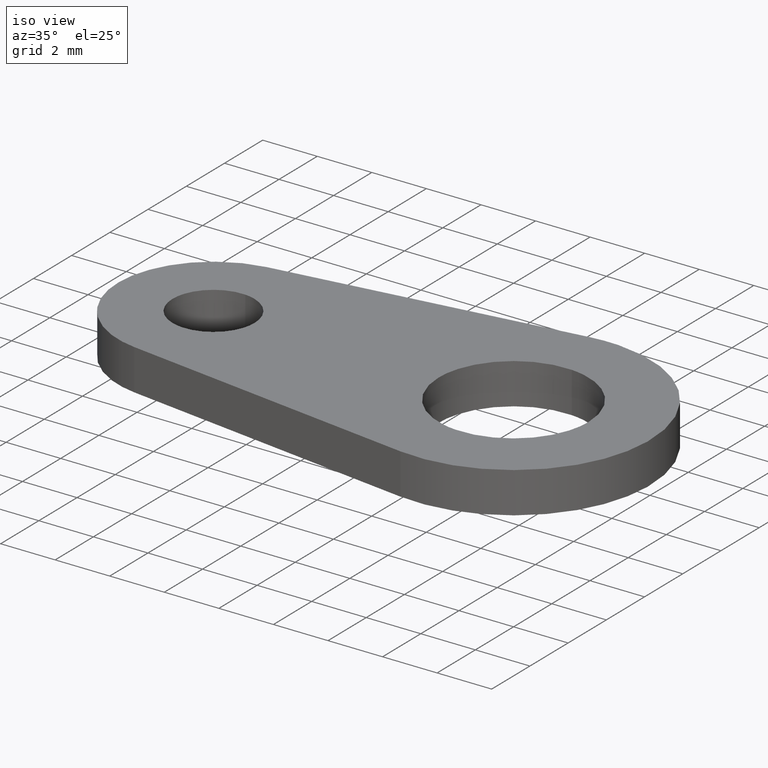
[diagram: clean part render]
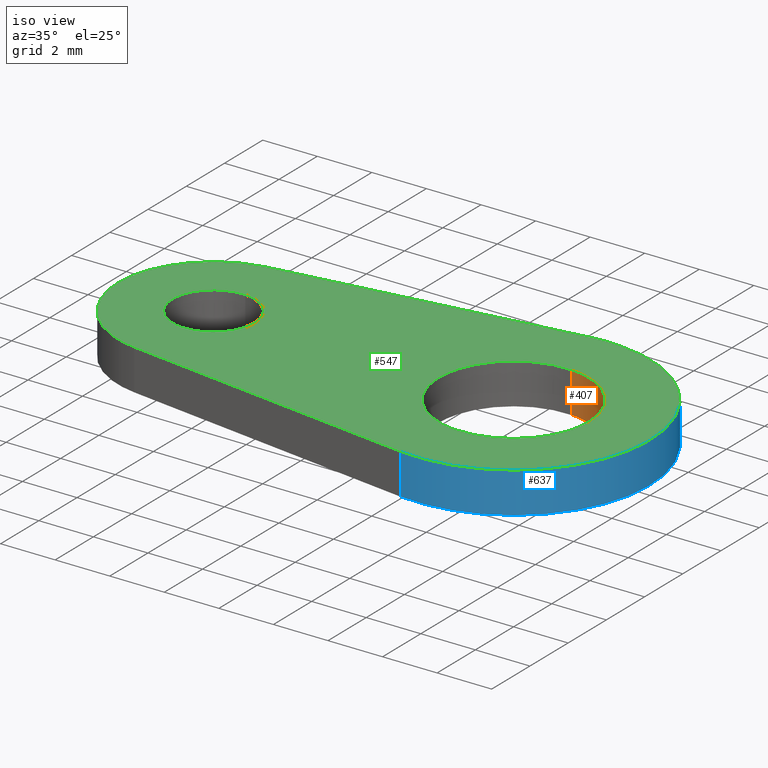
[diagram: same view with three faces highlighted in distinct colors, each labeled with its STEP entity id]
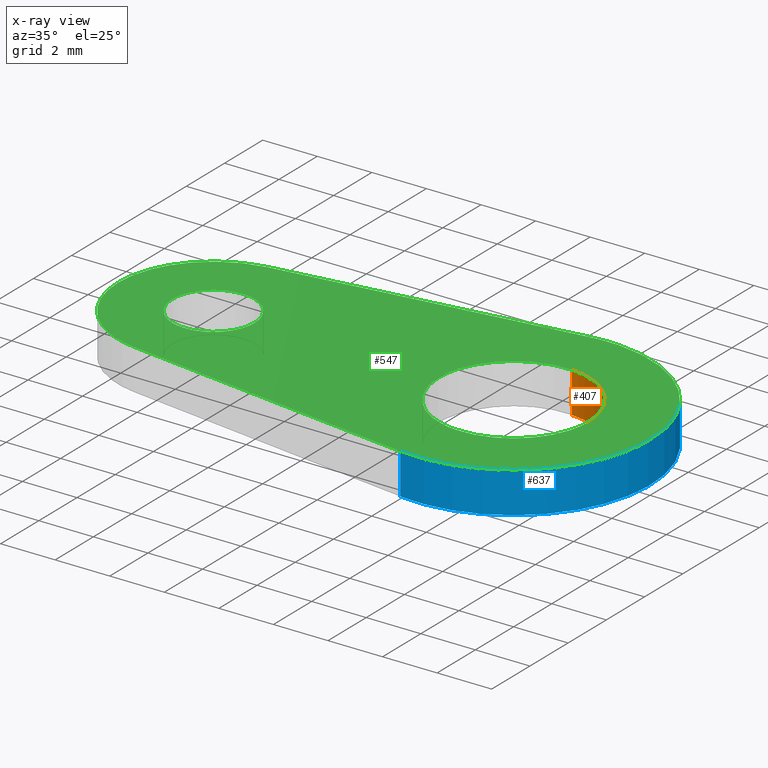
[diagram: x-ray of the same camera — body ghosted, the three highlighted faces saturated]
A machine part, iso view with three faces highlighted in distinct colors.
The next image is the same camera in x-ray (body ghosted, the three faces saturated) — at least one of them is partly hidden behind the body in this view.
Their STEP definitions:

[orange] entity #407 — the highlighted face is a freeform B-spline surface patch.
#246=CARTESIAN_POINT('',(10.784237486729440,-2.741522667764607,8.673617E-017));
#247=VERTEX_POINT('',#246);
#261=CARTESIAN_POINT('',(11.215762513270560,2.741522667764607,-8.673617E-017));
#262=VERTEX_POINT('',#261);
#278=CARTESIAN_POINT('',(11.215762513270560,2.741522667764607,1.500000000000055));
#279=VERTEX_POINT('',#278);
#280=CARTESIAN_POINT('',(11.215762513270560,2.741522667764607,1.500000000000055));
#281=CARTESIAN_POINT('',(11.215762513270560,2.741522667764607,-8.673617E-017));
#282=QUASI_UNIFORM_CURVE('',1,(#280,#281),.UNSPECIFIED.,.F.,.U.);
#283=EDGE_CURVE('',#279,#262,#282,.T.);
#302=CARTESIAN_POINT('',(10.784237486729440,-2.741522667764607,1.500000000000055));
#303=VERTEX_POINT('',#302);
#317=CARTESIAN_POINT('',(10.784237486729440,-2.741522667764607,1.500000000000055));
#318=CARTESIAN_POINT('',(10.784237486729440,-2.741522667764607,8.673617E-017));
#319=QUASI_UNIFORM_CURVE('',1,(#317,#318),.UNSPECIFIED.,.F.,.U.);
#320=EDGE_CURVE('',#303,#247,#319,.T.);
#325=CARTESIAN_POINT('',(11.215762513251580,2.741522667766101,1.537500000000057));
#326=CARTESIAN_POINT('',(13.957285181017678,2.525760154514525,1.537500000000057));
#327=CARTESIAN_POINT('',(13.741522667766100,-0.215762513251575,1.537500000000057));
#328=CARTESIAN_POINT('',(13.525760154514526,-2.957285181017677,1.537500000000057));
#329=CARTESIAN_POINT('',(10.784237486748420,-2.741522667766101,1.537500000000057));
#330=CARTESIAN_POINT('',(11.215762513251580,2.741522667766101,-0.038437500000001));
#331=CARTESIAN_POINT('',(13.957285181017678,2.525760154514525,-0.038437500000001));
#332=CARTESIAN_POINT('',(13.741522667766100,-0.215762513251575,-0.038437500000001));
#333=CARTESIAN_POINT('',(13.525760154514526,-2.957285181017677,-0.038437500000001));
#334=CARTESIAN_POINT('',(10.784237486748420,-2.741522667766101,-0.038437500000001));
#342=(BOUNDED_SURFACE()B_SPLINE_SURFACE(2,1,((#325,#330),(#326,#331),(#327,#332),(#328,#333),(#329,#334)),.UNSPECIFIED.,.F.,.F.,.U.)B_SPLINE_SURFACE_WITH_KNOTS((3,2,3),(2,2),(0.0,4.556349186104049,9.112698372208097),(0.0,1.0),.UNSPECIFIED.)GEOMETRIC_REPRESENTATION_ITEM()RATIONAL_B_SPLINE_SURFACE(((1.0,1.0),(0.707106781186548,0.707106781186548),(1.0,1.0),(0.707106781186548,0.707106781186548),(1.0,1.0)))REPRESENTATION_ITEM('')SURFACE());
#343=CARTESIAN_POINT('',(13.750000000000000,0.0,0.0));
#344=VERTEX_POINT('',#343);
#345=CARTESIAN_POINT('',(10.784237486729442,-2.741522667764607,8.673617E-017));
#346=CARTESIAN_POINT('',(10.891952205709833,-2.750000000000000,0.0));
#347=CARTESIAN_POINT('',(11.0,-2.750000000000000,0.0));
#348=CARTESIAN_POINT('',(13.750000000000000,-2.750000000000000,0.0));
#349=CARTESIAN_POINT('',(13.750000000000000,0.0,0.0));
#357=(BOUNDED_CURVE()B_SPLINE_CURVE(2,(#345,#346,#347,#348,#349),.UNSPECIFIED.,.F.,.U.)B_SPLINE_CURVE_WITH_KNOTS((3,2,3),(0.236331300630392,0.250000000000000,0.500000000000000),.UNSPECIFIED.)CURVE()GEOMETRIC_REPRESENTATION_ITEM()RATIONAL_B_SPLINE_CURVE((0.969723356166860,0.983986122578569,1.0,0.707106781186548,1.0))REPRESENTATION_ITEM(''));
#358=EDGE_CURVE('',#247,#344,#357,.T.);
#359=ORIENTED_EDGE('',*,*,#358,.F.);
#360=ORIENTED_EDGE('',*,*,#320,.F.);
#361=CARTESIAN_POINT('',(13.750000000000000,0.0,1.500000000000055));
#362=VERTEX_POINT('',#361);
#363=CARTESIAN_POINT('',(10.784237486729436,-2.741522667764607,1.500000000000055));
#364=CARTESIAN_POINT('',(10.891952205709835,-2.750000000000000,1.500000000000055));
#365=CARTESIAN_POINT('',(11.0,-2.750000000000000,1.500000000000055));
#366=CARTESIAN_POINT('',(13.750000000000000,-2.750000000000000,1.500000000000055));
#367=CARTESIAN_POINT('',(13.750000000000000,0.0,1.500000000000055));
#375=(BOUNDED_CURVE()B_SPLINE_CURVE(2,(#363,#364,#365,#366,#367),.UNSPECIFIED.,.F.,.U.)B_SPLINE_CURVE_WITH_KNOTS((3,2,3),(0.236331300630392,0.250000000000000,0.500000000000000),.UNSPECIFIED.)CURVE()GEOMETRIC_REPRESENTATION_ITEM()RATIONAL_B_SPLINE_CURVE((0.969723356166860,0.983986122578569,1.0,0.707106781186548,1.0))REPRESENTATION_ITEM(''));
#376=EDGE_CURVE('',#303,#362,#375,.T.);
#377=ORIENTED_EDGE('',*,*,#376,.T.);
#378=CARTESIAN_POINT('',(13.750000000000000,0.0,1.500000000000055));
#379=CARTESIAN_POINT('',(13.749999999999996,2.542073852024749,1.500000000000055));
#380=CARTESIAN_POINT('',(11.215762513270564,2.741522667764607,1.500000000000056));
#388=(BOUNDED_CURVE()B_SPLINE_CURVE(2,(#378,#379,#380),.UNSPECIFIED.,.F.,.U.)B_SPLINE_CURVE_WITH_KNOTS((3,3),(0.500000000000000,0.736331300630392),.UNSPECIFIED.)CURVE()GEOMETRIC_REPRESENTATION_ITEM()RATIONAL_B_SPLINE_CURVE((1.0,0.723120658607979,0.969723356166860))REPRESENTATION_ITEM(''));
#389=EDGE_CURVE('',#362,#279,#388,.T.);
#390=ORIENTED_EDGE('',*,*,#389,.T.);
#391=ORIENTED_EDGE('',*,*,#283,.T.);
#392=CARTESIAN_POINT('',(13.750000000000000,0.0,0.0));
#393=CARTESIAN_POINT('',(13.749999999999996,2.542073852024749,0.0));
#394=CARTESIAN_POINT('',(11.215762513270564,2.741522667764607,-8.673617E-017));
#402=(BOUNDED_CURVE()B_SPLINE_CURVE(2,(#392,#393,#394),.UNSPECIFIED.,.F.,.U.)B_SPLINE_CURVE_WITH_KNOTS((3,3),(0.500000000000000,0.736331300630392),.UNSPECIFIED.)CURVE()GEOMETRIC_REPRESENTATION_ITEM()RATIONAL_B_SPLINE_CURVE((1.0,0.723120658607979,0.969723356166860))REPRESENTATION_ITEM(''));
#403=EDGE_CURVE('',#344,#262,#402,.T.);
#404=ORIENTED_EDGE('',*,*,#403,.F.);
#405=EDGE_LOOP('',(#359,#360,#377,#390,#391,#404));
#406=FACE_OUTER_BOUND('',#405,.T.);
#407=ADVANCED_FACE('',(#406),#342,.F.);

[blue] entity #637 — the highlighted face is a freeform B-spline surface patch.
#413=CARTESIAN_POINT('',(10.318182000000000,-4.953294000000000,0.0));
#414=VERTEX_POINT('',#413);
#415=CARTESIAN_POINT('',(10.318182000000000,4.953294000000000,0.0));
#416=VERTEX_POINT('',#415);
#417=CARTESIAN_POINT('',(10.318182000000000,-4.953294000000000,0.0));
#418=CARTESIAN_POINT('',(13.487467747425296,-5.389544594444422,0.0));
#419=CARTESIAN_POINT('',(15.211674520440029,-2.694772297222210,0.0));
#420=CARTESIAN_POINT('',(16.935881293454763,0.0,0.0));
#421=CARTESIAN_POINT('',(15.211674520440029,2.694772297222210,0.0));
#422=CARTESIAN_POINT('',(13.487467747425296,5.389544594444420,0.0));
#423=CARTESIAN_POINT('',(10.318182000000000,4.953294000000000,0.0));
#431=(BOUNDED_CURVE()B_SPLINE_CURVE(2,(#417,#418,#419,#420,#421,#422,#423),.UNSPECIFIED.,.F.,.U.)B_SPLINE_CURVE_WITH_KNOTS((3,2,2,3),(0.0,0.333333333333333,0.666666666666667,1.0),.UNSPECIFIED.)CURVE()GEOMETRIC_REPRESENTATION_ITEM()RATIONAL_B_SPLINE_CURVE((1.0,0.842334904088005,1.0,0.842334904088005,1.0,0.842334904088005,1.0))REPRESENTATION_ITEM(''));
#432=EDGE_CURVE('',#414,#416,#431,.T.);
#483=CARTESIAN_POINT('',(10.318182000000000,-4.953294000000000,1.500000000000055));
#484=VERTEX_POINT('',#483);
#485=CARTESIAN_POINT('',(10.318182000000000,4.953294000000000,1.500000000000055));
#486=VERTEX_POINT('',#485);
#487=CARTESIAN_POINT('',(10.318182000000000,-4.953294000000000,1.500000000000055));
#488=CARTESIAN_POINT('',(13.487467747425296,-5.389544594444422,1.500000000000055));
#489=CARTESIAN_POINT('',(15.211674520440029,-2.694772297222210,1.500000000000055));
#490=CARTESIAN_POINT('',(16.935881293454763,0.0,1.500000000000055));
#491=CARTESIAN_POINT('',(15.211674520440029,2.694772297222210,1.500000000000055));
#492=CARTESIAN_POINT('',(13.487467747425296,5.389544594444420,1.500000000000055));
#493=CARTESIAN_POINT('',(10.318182000000000,4.953294000000000,1.500000000000055));
#501=(BOUNDED_CURVE()B_SPLINE_CURVE(2,(#487,#488,#489,#490,#491,#492,#493),.UNSPECIFIED.,.F.,.U.)B_SPLINE_CURVE_WITH_KNOTS((3,2,2,3),(0.0,0.333333333333333,0.666666666666667,1.0),.UNSPECIFIED.)CURVE()GEOMETRIC_REPRESENTATION_ITEM()RATIONAL_B_SPLINE_CURVE((1.0,0.842334904088005,1.0,0.842334904088005,1.0,0.842334904088005,1.0))REPRESENTATION_ITEM(''));
#502=EDGE_CURVE('',#484,#486,#501,.T.);
#554=CARTESIAN_POINT('',(10.318182000000000,-4.953294000000000,1.500000000000055));
#555=CARTESIAN_POINT('',(10.318182000000000,-4.953294000000000,0.0));
#556=QUASI_UNIFORM_CURVE('',1,(#554,#555),.UNSPECIFIED.,.F.,.U.);
#557=EDGE_CURVE('',#484,#414,#556,.T.);
#605=CARTESIAN_POINT('',(10.318182000000000,4.953294000000000,1.500000000000055));
#606=CARTESIAN_POINT('',(10.318182000000000,4.953294000000000,0.0));
#607=QUASI_UNIFORM_CURVE('',1,(#605,#606),.UNSPECIFIED.,.F.,.U.);
#608=EDGE_CURVE('',#486,#416,#607,.T.);
#613=CARTESIAN_POINT('',(10.188753476155259,-4.933748988097166,1.537500000000057));
#614=CARTESIAN_POINT('',(10.188753476155259,-4.933748988097166,-0.038437500000001));
#615=CARTESIAN_POINT('',(16.068566557678118,-5.900554947368696,1.537500000000057));
#616=CARTESIAN_POINT('',(16.068566557678118,-5.900554947368696,-0.038437500000001));
#617=CARTESIAN_POINT('',(15.999665735398491,0.057814654562636,1.537500000000057));
#618=CARTESIAN_POINT('',(15.999665735398491,0.057814654562636,-0.038437500000001));
#619=CARTESIAN_POINT('',(15.930764913118889,6.016184256493964,1.537500000000057));
#620=CARTESIAN_POINT('',(15.930764913118889,6.016184256493964,-0.038437500000001));
#621=CARTESIAN_POINT('',(10.074880836053250,4.913670169282677,1.537500000000057));
#622=CARTESIAN_POINT('',(10.074880836053250,4.913670169282677,-0.038437500000001));
#630=(BOUNDED_SURFACE()B_SPLINE_SURFACE(1,2,((#613,#615,#617,#619,#621),(#614,#616,#618,#620,#622)),.UNSPECIFIED.,.F.,.F.,.U.)B_SPLINE_SURFACE_WITH_KNOTS((2,2),(3,2,3),(0.0,1.0),(0.0,9.326153163099969,18.652306326199941),.UNSPECIFIED.)GEOMETRIC_REPRESENTATION_ITEM()RATIONAL_B_SPLINE_SURFACE(((1.0,0.642787609686539,1.0,0.642787609686539,1.0),(1.0,0.642787609686539,1.0,0.642787609686539,1.0)))REPRESENTATION_ITEM('')SURFACE());
#631=ORIENTED_EDGE('',*,*,#432,.T.);
#632=ORIENTED_EDGE('',*,*,#608,.F.);
#633=ORIENTED_EDGE('',*,*,#502,.F.);
#634=ORIENTED_EDGE('',*,*,#557,.T.);
#635=EDGE_LOOP('',(#631,#632,#633,#634));
#636=FACE_OUTER_BOUND('',#635,.T.);
#637=ADVANCED_FACE('',(#636),#630,.T.);

[green] entity #547 — the highlighted face is a freeform B-spline surface patch.
#96=CARTESIAN_POINT('',(0.117688643621650,1.495376000597340,1.500000000000055));
#97=VERTEX_POINT('',#96);
#103=CARTESIAN_POINT('',(-1.500000000000000,0.0,1.500000000000055));
#104=VERTEX_POINT('',#103);
#105=CARTESIAN_POINT('',(0.117688643621650,1.495376000597340,1.500000000000055));
#106=CARTESIAN_POINT('',(0.058935160541526,1.500000000000000,1.500000000000055));
#107=CARTESIAN_POINT('',(0.0,1.500000000000000,1.500000000000055));
#108=CARTESIAN_POINT('',(-1.500000000000000,1.500000000000000,1.500000000000055));
#109=CARTESIAN_POINT('',(-1.500000000000000,0.0,1.500000000000055));
#117=(BOUNDED_CURVE()B_SPLINE_CURVE(2,(#105,#106,#107,#108,#109),.UNSPECIFIED.,.F.,.U.)B_SPLINE_CURVE_WITH_KNOTS((3,2,3),(0.736331300625916,0.750000000000000,1.0),.UNSPECIFIED.)CURVE()GEOMETRIC_REPRESENTATION_ITEM()RATIONAL_B_SPLINE_CURVE((0.969723356157518,0.983986122573324,1.0,0.707106781186548,1.0))REPRESENTATION_ITEM(''));
#118=EDGE_CURVE('',#97,#104,#117,.T.);
#120=CARTESIAN_POINT('',(-0.117688643621651,-1.495376000597340,1.500000000000055));
#121=VERTEX_POINT('',#120);
#122=CARTESIAN_POINT('',(-1.500000000000000,0.0,1.500000000000055));
#123=CARTESIAN_POINT('',(-1.500000000000001,-1.386585737431722,1.500000000000055));
#124=CARTESIAN_POINT('',(-0.117688643621650,-1.495376000597340,1.500000000000054));
#132=(BOUNDED_CURVE()B_SPLINE_CURVE(2,(#122,#123,#124),.UNSPECIFIED.,.F.,.U.)B_SPLINE_CURVE_WITH_KNOTS((3,3),(0.0,0.236331300625916),.UNSPECIFIED.)CURVE()GEOMETRIC_REPRESENTATION_ITEM()RATIONAL_B_SPLINE_CURVE((1.0,0.723120658613224,0.969723356157517))REPRESENTATION_ITEM(''));
#133=EDGE_CURVE('',#104,#121,#132,.T.);
#179=CARTESIAN_POINT('',(1.500000000000000,0.0,1.500000000000055));
#180=VERTEX_POINT('',#179);
#181=CARTESIAN_POINT('',(-0.117688643621650,-1.495376000597340,1.500000000000054));
#182=CARTESIAN_POINT('',(-0.058935160541526,-1.500000000000000,1.500000000000055));
#183=CARTESIAN_POINT('',(0.0,-1.500000000000000,1.500000000000055));
#184=CARTESIAN_POINT('',(1.500000000000000,-1.500000000000000,1.500000000000055));
#185=CARTESIAN_POINT('',(1.500000000000000,0.0,1.500000000000055));
#193=(BOUNDED_CURVE()B_SPLINE_CURVE(2,(#181,#182,#183,#184,#185),.UNSPECIFIED.,.F.,.U.)B_SPLINE_CURVE_WITH_KNOTS((3,2,3),(0.236331300625916,0.250000000000000,0.500000000000000),.UNSPECIFIED.)CURVE()GEOMETRIC_REPRESENTATION_ITEM()RATIONAL_B_SPLINE_CURVE((0.969723356157517,0.983986122573324,1.0,0.707106781186548,1.0))REPRESENTATION_ITEM(''));
#194=EDGE_CURVE('',#121,#180,#193,.T.);
#196=CARTESIAN_POINT('',(1.500000000000000,0.0,1.500000000000055));
#197=CARTESIAN_POINT('',(1.500000000000000,1.386585737431726,1.500000000000054));
#198=CARTESIAN_POINT('',(0.117688643621650,1.495376000597340,1.500000000000055));
#206=(BOUNDED_CURVE()B_SPLINE_CURVE(2,(#196,#197,#198),.UNSPECIFIED.,.F.,.U.)B_SPLINE_CURVE_WITH_KNOTS((3,3),(0.500000000000000,0.736331300625916),.UNSPECIFIED.)CURVE()GEOMETRIC_REPRESENTATION_ITEM()RATIONAL_B_SPLINE_CURVE((1.0,0.723120658613223,0.969723356157518))REPRESENTATION_ITEM(''));
#207=EDGE_CURVE('',#180,#97,#206,.T.);
#278=CARTESIAN_POINT('',(11.215762513270560,2.741522667764607,1.500000000000055));
#279=VERTEX_POINT('',#278);
#285=CARTESIAN_POINT('',(8.250000000000000,0.0,1.500000000000055));
#286=VERTEX_POINT('',#285);
#287=CARTESIAN_POINT('',(11.215762513270564,2.741522667764607,1.500000000000056));
#288=CARTESIAN_POINT('',(11.108047794290171,2.750000000000000,1.500000000000056));
#289=CARTESIAN_POINT('',(11.0,2.750000000000000,1.500000000000055));
#290=CARTESIAN_POINT('',(8.250000000000000,2.750000000000000,1.500000000000055));
#291=CARTESIAN_POINT('',(8.250000000000000,0.0,1.500000000000055));
#299=(BOUNDED_CURVE()B_SPLINE_CURVE(2,(#287,#288,#289,#290,#291),.UNSPECIFIED.,.F.,.U.)B_SPLINE_CURVE_WITH_KNOTS((3,2,3),(0.736331300630392,0.750000000000000,1.0),.UNSPECIFIED.)CURVE()GEOMETRIC_REPRESENTATION_ITEM()RATIONAL_B_SPLINE_CURVE((0.969723356166860,0.983986122578569,1.0,0.707106781186548,1.0))REPRESENTATION_ITEM(''));
#300=EDGE_CURVE('',#279,#286,#299,.T.);
#302=CARTESIAN_POINT('',(10.784237486729440,-2.741522667764607,1.500000000000055));
#303=VERTEX_POINT('',#302);
#304=CARTESIAN_POINT('',(8.250000000000000,0.0,1.500000000000055));
#305=CARTESIAN_POINT('',(8.250000000000000,-2.542073852024749,1.500000000000055));
#306=CARTESIAN_POINT('',(10.784237486729442,-2.741522667764607,1.500000000000056));
#314=(BOUNDED_CURVE()B_SPLINE_CURVE(2,(#304,#305,#306),.UNSPECIFIED.,.F.,.U.)B_SPLINE_CURVE_WITH_KNOTS((3,3),(0.0,0.236331300630392),.UNSPECIFIED.)CURVE()GEOMETRIC_REPRESENTATION_ITEM()RATIONAL_B_SPLINE_CURVE((1.0,0.723120658607979,0.969723356166860))REPRESENTATION_ITEM(''));
#315=EDGE_CURVE('',#286,#303,#314,.T.);
#361=CARTESIAN_POINT('',(13.750000000000000,0.0,1.500000000000055));
#362=VERTEX_POINT('',#361);
#363=CARTESIAN_POINT('',(10.784237486729436,-2.741522667764607,1.500000000000055));
#364=CARTESIAN_POINT('',(10.891952205709835,-2.750000000000000,1.500000000000055));
#365=CARTESIAN_POINT('',(11.0,-2.750000000000000,1.500000000000055));
#366=CARTESIAN_POINT('',(13.750000000000000,-2.750000000000000,1.500000000000055));
#367=CARTESIAN_POINT('',(13.750000000000000,0.0,1.500000000000055));
#375=(BOUNDED_CURVE()B_SPLINE_CURVE(2,(#363,#364,#365,#366,#367),.UNSPECIFIED.,.F.,.U.)B_SPLINE_CURVE_WITH_KNOTS((3,2,3),(0.236331300630392,0.250000000000000,0.500000000000000),.UNSPECIFIED.)CURVE()GEOMETRIC_REPRESENTATION_ITEM()RATIONAL_B_SPLINE_CURVE((0.969723356166860,0.983986122578569,1.0,0.707106781186548,1.0))REPRESENTATION_ITEM(''));
#376=EDGE_CURVE('',#303,#362,#375,.T.);
#378=CARTESIAN_POINT('',(13.750000000000000,0.0,1.500000000000055));
#379=CARTESIAN_POINT('',(13.749999999999996,2.542073852024749,1.500000000000055));
#380=CARTESIAN_POINT('',(11.215762513270564,2.741522667764607,1.500000000000056));
#388=(BOUNDED_CURVE()B_SPLINE_CURVE(2,(#378,#379,#380),.UNSPECIFIED.,.F.,.U.)B_SPLINE_CURVE_WITH_KNOTS((3,3),(0.500000000000000,0.736331300630392),.UNSPECIFIED.)CURVE()GEOMETRIC_REPRESENTATION_ITEM()RATIONAL_B_SPLINE_CURVE((1.0,0.723120658607979,0.969723356166860))REPRESENTATION_ITEM(''));
#389=EDGE_CURVE('',#362,#279,#388,.T.);
#478=CARTESIAN_POINT('',(-4.474024962205190,5.498051409180732,1.500000000000000));
#479=CARTESIAN_POINT('',(16.974025485235970,5.498051409180732,1.500000000000000));
#480=CARTESIAN_POINT('',(-4.474024962205190,-5.498051742406950,1.500000000000000));
#481=CARTESIAN_POINT('',(16.974025485235970,-5.498051742406950,1.500000000000000));
#482=B_SPLINE_SURFACE_WITH_KNOTS('',1,1,((#478,#480),(#479,#481)),.UNSPECIFIED.,.F.,.F.,.U.,(2,2),(2,2),(0.0,21.448050447441162),(0.0,10.996103151587681),.UNSPECIFIED.);
#483=CARTESIAN_POINT('',(10.318182000000000,-4.953294000000000,1.500000000000055));
#484=VERTEX_POINT('',#483);
#485=CARTESIAN_POINT('',(10.318182000000000,4.953294000000000,1.500000000000055));
#486=VERTEX_POINT('',#485);
#487=CARTESIAN_POINT('',(10.318182000000000,-4.953294000000000,1.500000000000055));
#488=CARTESIAN_POINT('',(13.487467747425296,-5.389544594444422,1.500000000000055));
#489=CARTESIAN_POINT('',(15.211674520440029,-2.694772297222210,1.500000000000055));
#490=CARTESIAN_POINT('',(16.935881293454763,0.0,1.500000000000055));
#491=CARTESIAN_POINT('',(15.211674520440029,2.694772297222210,1.500000000000055));
#492=CARTESIAN_POINT('',(13.487467747425296,5.389544594444420,1.500000000000055));
#493=CARTESIAN_POINT('',(10.318182000000000,4.953294000000000,1.500000000000055));
#501=(BOUNDED_CURVE()B_SPLINE_CURVE(2,(#487,#488,#489,#490,#491,#492,#493),.UNSPECIFIED.,.F.,.U.)B_SPLINE_CURVE_WITH_KNOTS((3,2,2,3),(0.0,0.333333333333333,0.666666666666667,1.0),.UNSPECIFIED.)CURVE()GEOMETRIC_REPRESENTATION_ITEM()RATIONAL_B_SPLINE_CURVE((1.0,0.842334904088005,1.0,0.842334904088005,1.0,0.842334904088005,1.0))REPRESENTATION_ITEM(''));
#502=EDGE_CURVE('',#484,#486,#501,.T.);
#503=ORIENTED_EDGE('',*,*,#502,.T.);
#504=CARTESIAN_POINT('',(-0.477273000000000,3.467306000000000,1.500000000000055));
#505=VERTEX_POINT('',#504);
#506=CARTESIAN_POINT('',(10.318182000000000,4.953294000000000,1.500000000000055));
#507=CARTESIAN_POINT('',(-0.477273000000000,3.467306000000000,1.500000000000055));
#508=QUASI_UNIFORM_CURVE('',1,(#506,#507),.UNSPECIFIED.,.F.,.U.);
#509=EDGE_CURVE('',#486,#505,#508,.T.);
#510=ORIENTED_EDGE('',*,*,#509,.T.);
#511=CARTESIAN_POINT('',(-0.477272620487599,-3.467305992515355,1.500000000000055));
#512=VERTEX_POINT('',#511);
#513=CARTESIAN_POINT('',(-0.477273000000000,3.467306000000000,1.500000000000055));
#514=CARTESIAN_POINT('',(-3.500000163435459,3.051229002885575,1.500000000000055));
#515=CARTESIAN_POINT('',(-3.499999999999995,-0.000000187473338,1.500000000000055));
#516=CARTESIAN_POINT('',(-3.499999836564531,-3.051229377832254,1.500000000000055));
#517=CARTESIAN_POINT('',(-0.477272620487600,-3.467305992515356,1.500000000000055));
#525=(BOUNDED_CURVE()B_SPLINE_CURVE(2,(#513,#514,#515,#516,#517),.UNSPECIFIED.,.F.,.U.)B_SPLINE_CURVE_WITH_KNOTS((3,2,3),(0.0,0.500000000000000,1.0),.UNSPECIFIED.)CURVE()GEOMETRIC_REPRESENTATION_ITEM()RATIONAL_B_SPLINE_CURVE((1.0,0.753778368924535,1.0,0.753778368924535,1.0))REPRESENTATION_ITEM(''));
#526=EDGE_CURVE('',#505,#512,#525,.T.);
#527=ORIENTED_EDGE('',*,*,#526,.T.);
#528=CARTESIAN_POINT('',(-0.477272620487599,-3.467305992515355,1.500000000000055));
#529=CARTESIAN_POINT('',(10.318182000000000,-4.953294000000000,1.500000000000055));
#530=QUASI_UNIFORM_CURVE('',1,(#528,#529),.UNSPECIFIED.,.F.,.U.);
#531=EDGE_CURVE('',#512,#484,#530,.T.);
#532=ORIENTED_EDGE('',*,*,#531,.T.);
#533=EDGE_LOOP('',(#503,#510,#527,#532));
#534=FACE_OUTER_BOUND('',#533,.T.);
#535=ORIENTED_EDGE('',*,*,#389,.F.);
#536=ORIENTED_EDGE('',*,*,#376,.F.);
#537=ORIENTED_EDGE('',*,*,#315,.F.);
#538=ORIENTED_EDGE('',*,*,#300,.F.);
#539=EDGE_LOOP('',(#535,#536,#537,#538));
#540=FACE_BOUND('',#539,.T.);
#541=ORIENTED_EDGE('',*,*,#207,.F.);
#542=ORIENTED_EDGE('',*,*,#194,.F.);
#543=ORIENTED_EDGE('',*,*,#133,.F.);
#544=ORIENTED_EDGE('',*,*,#118,.F.);
#545=EDGE_LOOP('',(#541,#542,#543,#544));
#546=FACE_BOUND('',#545,.T.);
#547=ADVANCED_FACE('',(#534,#540,#546),#482,.F.);